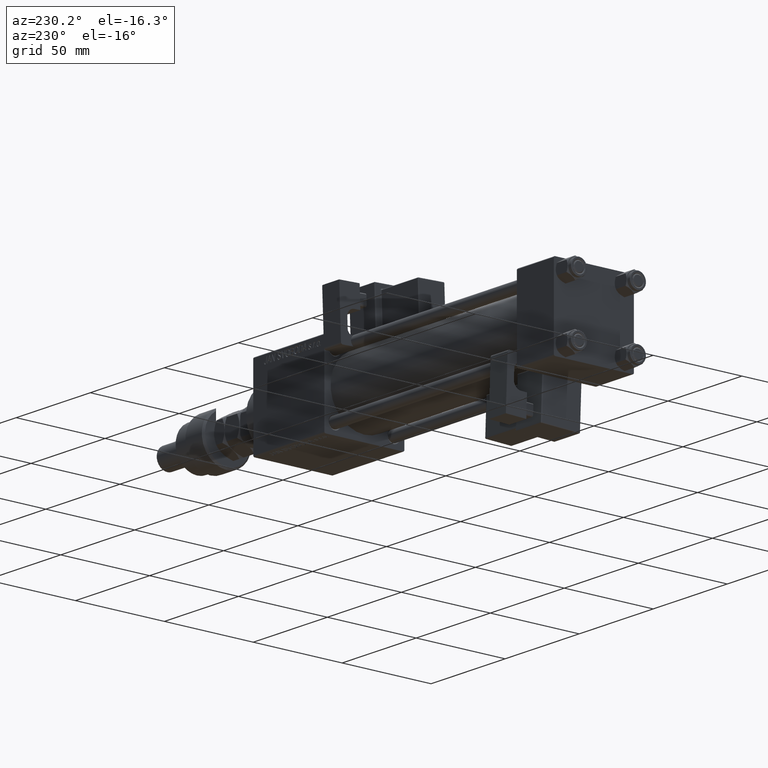
[diagram: clean part render]
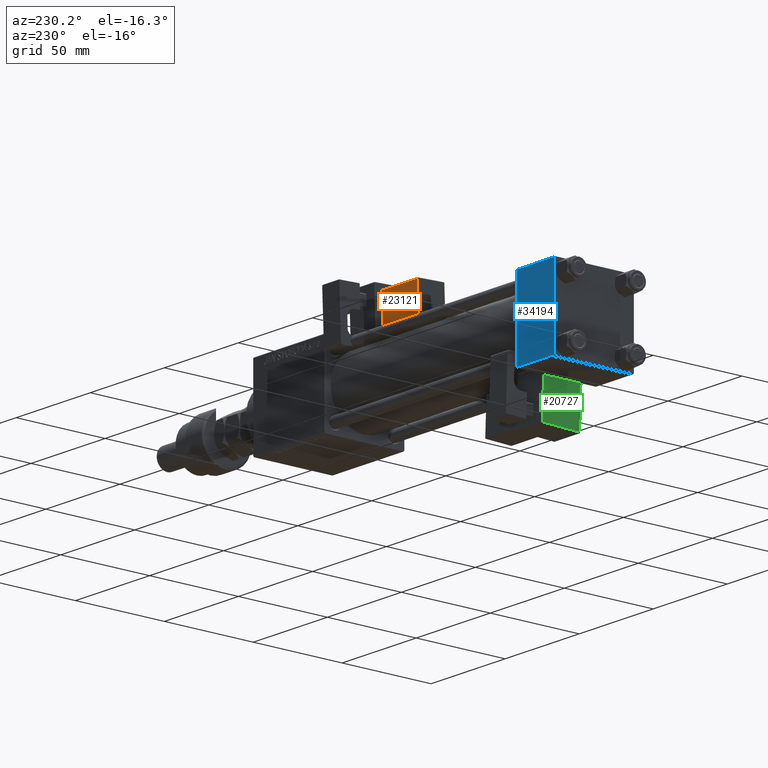
[diagram: same view with three faces highlighted in distinct colors, each labeled with its STEP entity id]
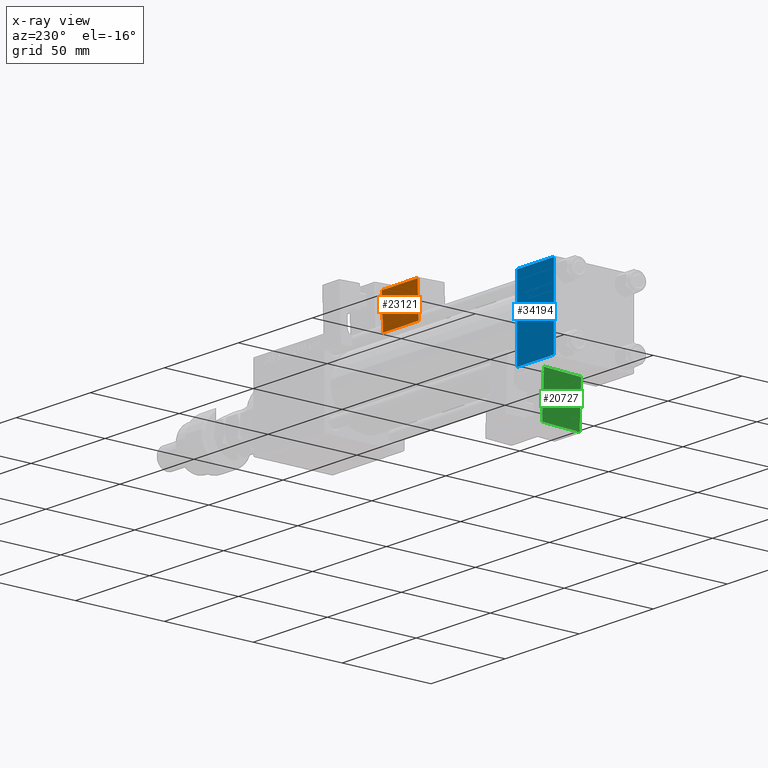
[diagram: x-ray of the same camera — body ghosted, the three highlighted faces saturated]
A machine part, auxiliary view with three faces highlighted in distinct colors.
The next image is the same camera in x-ray (body ghosted, the three faces saturated) — at least one of them is partly hidden behind the body in this view.
Their STEP definitions:

[orange] entity #23121 — the highlighted planar face has unit normal (-0, -0.9994, 0.0353).
#151 = VERTEX_POINT ( 'NONE', #32815 ) ;
#381 = LINE ( 'NONE', #34009, #41426 ) ;
#1628 = EDGE_CURVE ( 'NONE', #21467, #151, #42766, .T. ) ;
#4099 = CARTESIAN_POINT ( 'NONE',  ( 9.250000000000001776, -15.25000000000000000, 22.00000000000000355 ) ) ;
#5762 = DIRECTION ( 'NONE',  ( 1.734723475976807341E-16, -0.000000000000000000, -1.000000000000000000 ) ) ;
#7108 = VERTEX_POINT ( 'NONE', #51735 ) ;
#8524 = DIRECTION ( 'NONE',  ( 0.000000000000000000, -1.000000000000000000, 0.000000000000000000 ) ) ;
#16108 = FACE_OUTER_BOUND ( 'NONE', #44058, .T. ) ;
#18964 = ORIENTED_EDGE ( 'NONE', *, *, #23792, .T. ) ;
#21209 = DIRECTION ( 'NONE',  ( -1.334402673828313339E-16, 0.000000000000000000, 1.000000000000000000 ) ) ;
#21467 = VERTEX_POINT ( 'NONE', #25311 ) ;
#23121 = ADVANCED_FACE ( 'NONE', ( #16108 ), #33193, .F. ) ;
#23552 = ORIENTED_EDGE ( 'NONE', *, *, #1628, .T. ) ;
#23792 = EDGE_CURVE ( 'NONE', #43223, #7108, #47802, .T. ) ;
#25311 = CARTESIAN_POINT ( 'NONE',  ( 9.250000000000003553, -15.25000000000000000, 2.500000000000005773 ) ) ;
#31091 = EDGE_CURVE ( 'NONE', #7108, #21467, #381, .T. ) ;
#31496 = ORIENTED_EDGE ( 'NONE', *, *, #33819, .T. ) ;
#31752 = CARTESIAN_POINT ( 'NONE',  ( 33.75000000000000000, -15.25000000000000000, 21.50000000000000355 ) ) ;
#32815 = CARTESIAN_POINT ( 'NONE',  ( 9.250000000000001776, -15.25000000000000000, 21.50000000000000000 ) ) ;
#33193 = PLANE ( 'NONE',  #37517 ) ;
#33819 = EDGE_CURVE ( 'NONE', #151, #43223, #40693, .T. ) ;
#34009 = CARTESIAN_POINT ( 'NONE',  ( 33.75000000000000000, -15.25000000000000000, 2.500000000000009326 ) ) ;
#34833 = VECTOR ( 'NONE', #5762, 1000.000000000000000 ) ;
#35091 = DIRECTION ( 'NONE',  ( -1.000000000000000000, 0.000000000000000000, -1.334402673828313339E-16 ) ) ;
#36467 = ORIENTED_EDGE ( 'NONE', *, *, #31091, .T. ) ;
#37136 = VECTOR ( 'NONE', #21209, 1000.000000000000000 ) ;
#37517 = AXIS2_PLACEMENT_3D ( 'NONE', #50293, #8524, #38771 ) ;
#38771 = DIRECTION ( 'NONE',  ( 0.000000000000000000, -0.000000000000000000, -1.000000000000000000 ) ) ;
#39392 = CARTESIAN_POINT ( 'NONE',  ( 33.25000000000000000, -15.25000000000000000, 2.000000000000008438 ) ) ;
#40693 = LINE ( 'NONE', #31752, #54797 ) ;
#41426 = VECTOR ( 'NONE', #35091, 1000.000000000000000 ) ;
#42766 = LINE ( 'NONE', #4099, #37136 ) ;
#43223 = VERTEX_POINT ( 'NONE', #48326 ) ;
#44058 = EDGE_LOOP ( 'NONE', ( #36467, #23552, #31496, #18964 ) ) ;
#47802 = LINE ( 'NONE', #39392, #34833 ) ;
#48326 = CARTESIAN_POINT ( 'NONE',  ( 33.25000000000000000, -15.25000000000000000, 21.50000000000000355 ) ) ;
#48836 = DIRECTION ( 'NONE',  ( 1.000000000000000000, -0.000000000000000000, 1.334402673828313339E-16 ) ) ;
#50293 = CARTESIAN_POINT ( 'NONE',  ( 33.75000000000000000, -15.25000000000000000, 22.00000000000000711 ) ) ;
#51735 = CARTESIAN_POINT ( 'NONE',  ( 33.25000000000000000, -15.25000000000000000, 2.500000000000009326 ) ) ;
#54797 = VECTOR ( 'NONE', #48836, 1000.000000000000000 ) ;

[blue] entity #34194 — the highlighted planar face has unit normal (0, 1, 0).
#2298 = VERTEX_POINT ( 'NONE', #13420 ) ;
#3507 = LINE ( 'NONE', #7155, #11469 ) ;
#5161 = LINE ( 'NONE', #22528, #10419 ) ;
#5592 = LINE ( 'NONE', #19042, #33086 ) ;
#6037 = DIRECTION ( 'NONE',  ( 0.000000000000000000, 0.000000000000000000, -1.000000000000000000 ) ) ;
#7005 = PLANE ( 'NONE',  #25280 ) ;
#7155 = CARTESIAN_POINT ( 'NONE',  ( 25.00000000000000000, 22.50000000000000000, -21.99999999999998224 ) ) ;
#7276 = EDGE_CURVE ( 'NONE', #40097, #27313, #3507, .T. ) ;
#7868 = ORIENTED_EDGE ( 'NONE', *, *, #7276, .T. ) ;
#8738 = EDGE_CURVE ( 'NONE', #18586, #2298, #5592, .T. ) ;
#9076 = ORIENTED_EDGE ( 'NONE', *, *, #49752, .T. ) ;
#10419 = VECTOR ( 'NONE', #44094, 1000.000000000000000 ) ;
#11469 = VECTOR ( 'NONE', #15836, 1000.000000000000000 ) ;
#13420 = CARTESIAN_POINT ( 'NONE',  ( 25.00000000000000000, 22.50000000000000000, 21.99999999999999645 ) ) ;
#15836 = DIRECTION ( 'NONE',  ( -1.000000000000000000, 0.000000000000000000, 0.000000000000000000 ) ) ;
#16246 = FACE_OUTER_BOUND ( 'NONE', #31347, .T. ) ;
#18103 = LINE ( 'NONE', #39107, #31253 ) ;
#18487 = DIRECTION ( 'NONE',  ( 1.000000000000000000, 0.000000000000000000, 0.000000000000000000 ) ) ;
#18586 = VERTEX_POINT ( 'NONE', #42270 ) ;
#19042 = CARTESIAN_POINT ( 'NONE',  ( 25.00000000000000000, 22.50000000000000000, 21.99999999999999645 ) ) ;
#22528 = CARTESIAN_POINT ( 'NONE',  ( 25.00000000000000000, 22.50000000000000000, 22.50000000000000355 ) ) ;
#22885 = EDGE_CURVE ( 'NONE', #18586, #27313, #18103, .T. ) ;
#24218 = CARTESIAN_POINT ( 'NONE',  ( 25.00000000000000000, 22.50000000000000000, -21.99999999999996803 ) ) ;
#25280 = AXIS2_PLACEMENT_3D ( 'NONE', #41189, #37252, #50158 ) ;
#27313 = VERTEX_POINT ( 'NONE', #49726 ) ;
#31253 = VECTOR ( 'NONE', #6037, 1000.000000000000000 ) ;
#31347 = EDGE_LOOP ( 'NONE', ( #9076, #7868, #40205, #54293 ) ) ;
#33086 = VECTOR ( 'NONE', #18487, 1000.000000000000000 ) ;
#34194 = ADVANCED_FACE ( 'NONE', ( #16246 ), #7005, .T. ) ;
#37252 = DIRECTION ( 'NONE',  ( -0.000000000000000000, 1.000000000000000000, 0.000000000000000000 ) ) ;
#39107 = CARTESIAN_POINT ( 'NONE',  ( 0.000000000000000000, 22.50000000000000000, 22.50000000000000355 ) ) ;
#40097 = VERTEX_POINT ( 'NONE', #24218 ) ;
#40205 = ORIENTED_EDGE ( 'NONE', *, *, #22885, .F. ) ;
#41189 = CARTESIAN_POINT ( 'NONE',  ( 25.00000000000000000, 22.50000000000000000, 22.50000000000000355 ) ) ;
#42270 = CARTESIAN_POINT ( 'NONE',  ( 0.000000000000000000, 22.50000000000000000, 21.99999999999999645 ) ) ;
#44094 = DIRECTION ( 'NONE',  ( 0.000000000000000000, 0.000000000000000000, -1.000000000000000000 ) ) ;
#49726 = CARTESIAN_POINT ( 'NONE',  ( 0.000000000000000000, 22.50000000000000000, -21.99999999999996803 ) ) ;
#49752 = EDGE_CURVE ( 'NONE', #2298, #40097, #5161, .T. ) ;
#50158 = DIRECTION ( 'NONE',  ( 0.000000000000000000, -0.000000000000000000, 1.000000000000000000 ) ) ;
#54293 = ORIENTED_EDGE ( 'NONE', *, *, #8738, .T. ) ;

[green] entity #20727 — the highlighted planar face has unit normal (1, 0, -0).
#2202 = ORIENTED_EDGE ( 'NONE', *, *, #28995, .T. ) ;
#3863 = PLANE ( 'NONE',  #33962 ) ;
#4142 = CARTESIAN_POINT ( 'NONE',  ( -8.750000000000000000, -33.75000000000000000, 25.00000000000000000 ) ) ;
#5121 = ORIENTED_EDGE ( 'NONE', *, *, #47485, .T. ) ;
#6451 = DIRECTION ( 'NONE',  ( -0.000000000000000000, -1.000000000000000000, -0.000000000000000000 ) ) ;
#6630 = DIRECTION ( 'NONE',  ( 1.334402673828313093E-16, -0.000000000000000000, 1.000000000000000000 ) ) ;
#6702 = EDGE_CURVE ( 'NONE', #25293, #25100, #43394, .T. ) ;
#8071 = EDGE_LOOP ( 'NONE', ( #17528, #2202, #8764, #5121 ) ) ;
#8764 = ORIENTED_EDGE ( 'NONE', *, *, #6702, .T. ) ;
#17528 = ORIENTED_EDGE ( 'NONE', *, *, #54849, .T. ) ;
#17637 = DIRECTION ( 'NONE',  ( -1.334402673828313093E-16, 0.000000000000000000, -1.000000000000000000 ) ) ;
#18097 = CARTESIAN_POINT ( 'NONE',  ( -8.750000000000000000, -33.25000000000000000, 24.50000000000000000 ) ) ;
#18738 = VERTEX_POINT ( 'NONE', #18097 ) ;
#18967 = VECTOR ( 'NONE', #46593, 1000.000000000000000 ) ;
#20727 = ADVANCED_FACE ( 'NONE', ( #42242 ), #3863, .F. ) ;
#21528 = DIRECTION ( 'NONE',  ( -1.334402673828313093E-16, 0.000000000000000000, -1.000000000000000000 ) ) ;
#23456 = CARTESIAN_POINT ( 'NONE',  ( -8.750000000000000000, -33.25000000000000000, 25.00000000000000000 ) ) ;
#24039 = CARTESIAN_POINT ( 'NONE',  ( -8.750000000000003553, -33.25000000000000000, -0.5000000000000001110 ) ) ;
#25100 = VERTEX_POINT ( 'NONE', #48304 ) ;
#25293 = VERTEX_POINT ( 'NONE', #25566 ) ;
#25566 = CARTESIAN_POINT ( 'NONE',  ( -8.750000000000000000, -12.25000000000000000, 24.50000000000000000 ) ) ;
#28203 = VECTOR ( 'NONE', #6451, 1000.000000000000000 ) ;
#28995 = EDGE_CURVE ( 'NONE', #18738, #25293, #33700, .T. ) ;
#33700 = LINE ( 'NONE', #50805, #18967 ) ;
#33785 = VECTOR ( 'NONE', #17637, 1000.000000000000000 ) ;
#33962 = AXIS2_PLACEMENT_3D ( 'NONE', #4142, #50939, #21528 ) ;
#34156 = CARTESIAN_POINT ( 'NONE',  ( -8.750000000000003553, -12.25000000000000000, -1.000000000000000888 ) ) ;
#42242 = FACE_OUTER_BOUND ( 'NONE', #8071, .T. ) ;
#43394 = LINE ( 'NONE', #34156, #33785 ) ;
#44197 = LINE ( 'NONE', #23456, #51812 ) ;
#46593 = DIRECTION ( 'NONE',  ( 0.000000000000000000, 1.000000000000000000, 0.000000000000000000 ) ) ;
#47485 = EDGE_CURVE ( 'NONE', #25100, #50948, #53790, .T. ) ;
#48304 = CARTESIAN_POINT ( 'NONE',  ( -8.750000000000003553, -12.25000000000000000, -0.5000000000000001110 ) ) ;
#49041 = CARTESIAN_POINT ( 'NONE',  ( -8.750000000000003553, -33.75000000000000000, -0.5000000000000004441 ) ) ;
#50805 = CARTESIAN_POINT ( 'NONE',  ( -8.750000000000000000, -33.75000000000000000, 24.50000000000000000 ) ) ;
#50939 = DIRECTION ( 'NONE',  ( 1.000000000000000000, 0.000000000000000000, -1.334402673828313093E-16 ) ) ;
#50948 = VERTEX_POINT ( 'NONE', #24039 ) ;
#51812 = VECTOR ( 'NONE', #6630, 1000.000000000000000 ) ;
#53790 = LINE ( 'NONE', #49041, #28203 ) ;
#54849 = EDGE_CURVE ( 'NONE', #50948, #18738, #44197, .T. ) ;